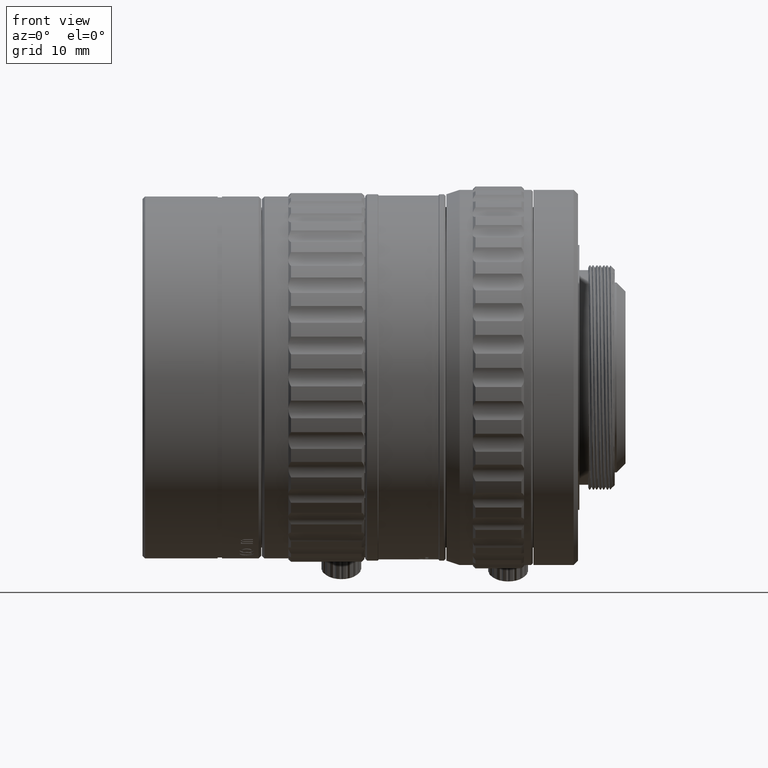
[diagram: clean part render]
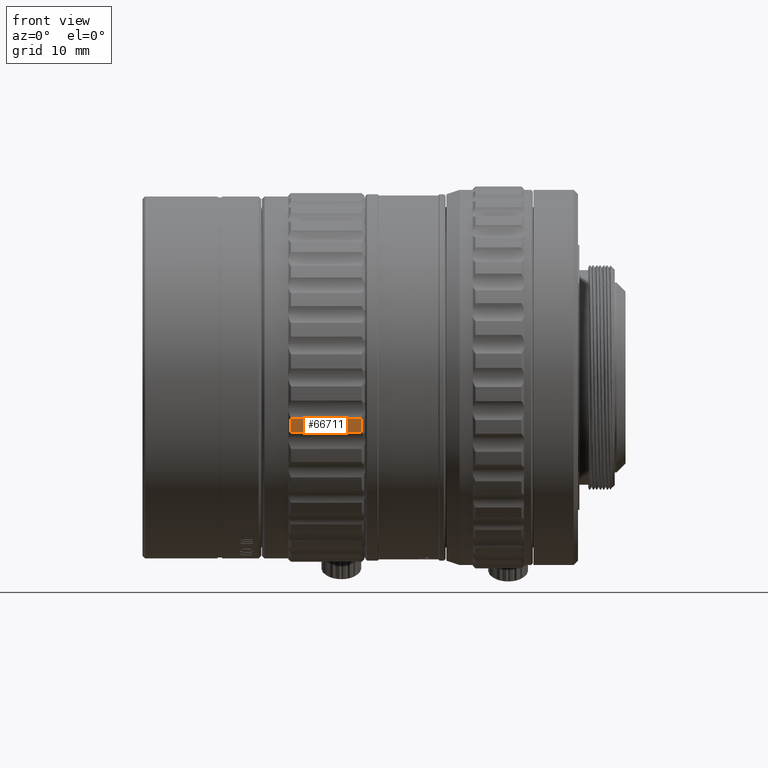
[diagram: same view with one face highlighted and labeled with its STEP entity id]
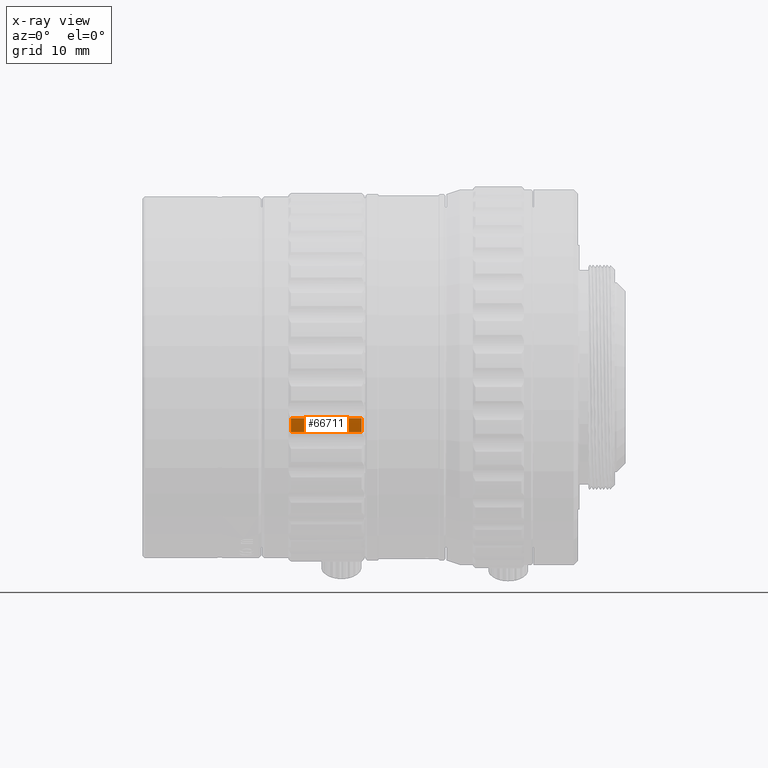
[diagram: x-ray of the same camera — body ghosted, the highlighted face saturated]
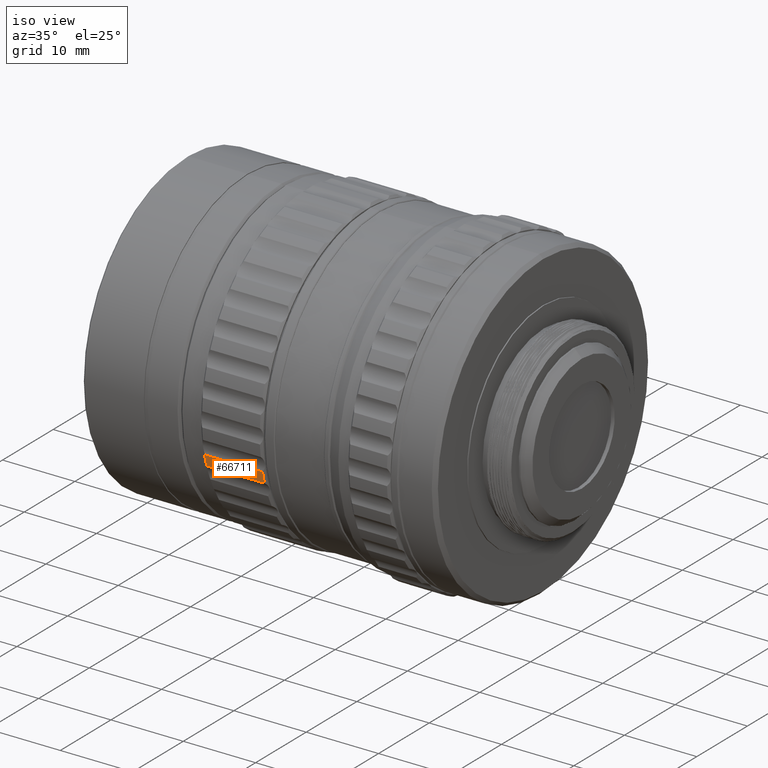
[diagram: same view with one face highlighted and labeled with its STEP entity id]
A machine part, front view. The second image highlights one B-rep face of the part: STEP entity #66711.
The next image is the same camera in x-ray: the body ghosted, the highlighted face saturated — about 0% of this face is hidden behind the body in this view.
A second angle (iso view) of the same face is appended — the face is thin or edge-on in the first view.
In plain terms, the highlighted cylindrical surface (partial cylindrical patch) has radius 20.9 mm, axis along (1, -0, -0).
Its self-contained STEP definition (entity closure, byte-faithful):
#307 = VERTEX_POINT ( 'NONE', #69871 ) ;
#1406 = CARTESIAN_POINT ( 'NONE',  ( 20.21999727038436490, 0.000000000000000000, 0.000000000000000000 ) ) ;
#1536 = DIRECTION ( 'NONE',  ( 0.000000000000000000, 1.000000000000000000, 0.000000000000000000 ) ) ;
#8167 = DIRECTION ( 'NONE',  ( -1.000000000000000000, -0.000000000000000000, -0.000000000000000000 ) ) ;
#12379 = CARTESIAN_POINT ( 'NONE',  ( 20.21999727038372541, -20.38241493728612141, -4.622462690407385111 ) ) ;
#14088 = CARTESIAN_POINT ( 'NONE',  ( 12.22000272961547296, 0.000000000000000000, 0.000000000000000000 ) ) ;
#14532 = CARTESIAN_POINT ( 'NONE',  ( 20.21999727038364369, -19.96292047136949321, -6.188037350710033024 ) ) ;
#16672 = EDGE_CURVE ( 'NONE', #61754, #307, #82109, .T. ) ;
#16875 = CARTESIAN_POINT ( 'NONE',  ( 16.22000000000000242, -20.38241493728397558, -4.622462690407610708 ) ) ;
#18209 = ORIENTED_EDGE ( 'NONE', *, *, #77669, .F. ) ;
#24324 = EDGE_CURVE ( 'NONE', #38267, #61754, #67141, .T. ) ;
#31715 = CYLINDRICAL_SURFACE ( 'NONE', #72617, 20.89999999999586677 ) ;
#32398 = LINE ( 'NONE', #16875, #94646 ) ;
#32770 = DIRECTION ( 'NONE',  ( 0.000000000000000000, -0.5000000000000864864, 0.8660254037843888586 ) ) ;
#38267 = VERTEX_POINT ( 'NONE', #12379 ) ;
#41623 = CARTESIAN_POINT ( 'NONE',  ( 12.22000272961601475, -20.38241493728599352, -4.622462690407039609 ) ) ;
#42155 = DIRECTION ( 'NONE',  ( 1.000000000000000000, 0.000000000000000000, 0.000000000000000000 ) ) ;
#52055 = ORIENTED_EDGE ( 'NONE', *, *, #16672, .F. ) ;
#60399 = DIRECTION ( 'NONE',  ( 0.000000000000000000, -0.5000000000000988098, 0.8660254037843816421 ) ) ;
#61754 = VERTEX_POINT ( 'NONE', #14532 ) ;
#65038 = FACE_OUTER_BOUND ( 'NONE', #73560, .T. ) ;
#65188 = DIRECTION ( 'NONE',  ( 1.000000000000000000, 0.000000000000000000, 0.000000000000000000 ) ) ;
#65483 = CIRCLE ( 'NONE', #99705, 20.89999999999586677 ) ;
#66711 = ADVANCED_FACE ( 'NONE', ( #65038 ), #31715, .T. ) ;
#67141 = CIRCLE ( 'NONE', #68823, 20.89999999999586677 ) ;
#67535 = DIRECTION ( 'NONE',  ( 1.000000000000000000, -3.594054063964970122E-17, -2.075028081312790928E-17 ) ) ;
#68823 = AXIS2_PLACEMENT_3D ( 'NONE', #1406, #42155, #60399 ) ;
#69871 = CARTESIAN_POINT ( 'NONE',  ( 12.22000272961631318, -19.96292047136650893, -6.188037350712497719 ) ) ;
#71712 = VECTOR ( 'NONE', #71957, 1000.000000000000000 ) ;
#71957 = DIRECTION ( 'NONE',  ( -1.000000000000000000, -0.000000000000000000, -0.000000000000000000 ) ) ;
#72617 = AXIS2_PLACEMENT_3D ( 'NONE', #84696, #67535, #1536 ) ;
#73560 = EDGE_LOOP ( 'NONE', ( #18209, #78407, #52055, #85191 ) ) ;
#76981 = EDGE_CURVE ( 'NONE', #307, #96557, #65483, .T. ) ;
#77669 = EDGE_CURVE ( 'NONE', #96557, #38267, #32398, .T. ) ;
#78407 = ORIENTED_EDGE ( 'NONE', *, *, #76981, .F. ) ;
#82109 = LINE ( 'NONE', #104642, #71712 ) ;
#84696 = CARTESIAN_POINT ( 'NONE',  ( 12.22000272961547296, 0.000000000000000000, 0.000000000000000000 ) ) ;
#85191 = ORIENTED_EDGE ( 'NONE', *, *, #24324, .F. ) ;
#94646 = VECTOR ( 'NONE', #65188, 1000.000000000000000 ) ;
#96557 = VERTEX_POINT ( 'NONE', #41623 ) ;
#99705 = AXIS2_PLACEMENT_3D ( 'NONE', #14088, #8167, #32770 ) ;
#104642 = CARTESIAN_POINT ( 'NONE',  ( 16.22000966854499637, -19.96292047136952874, -6.188037350710001050 ) ) ;